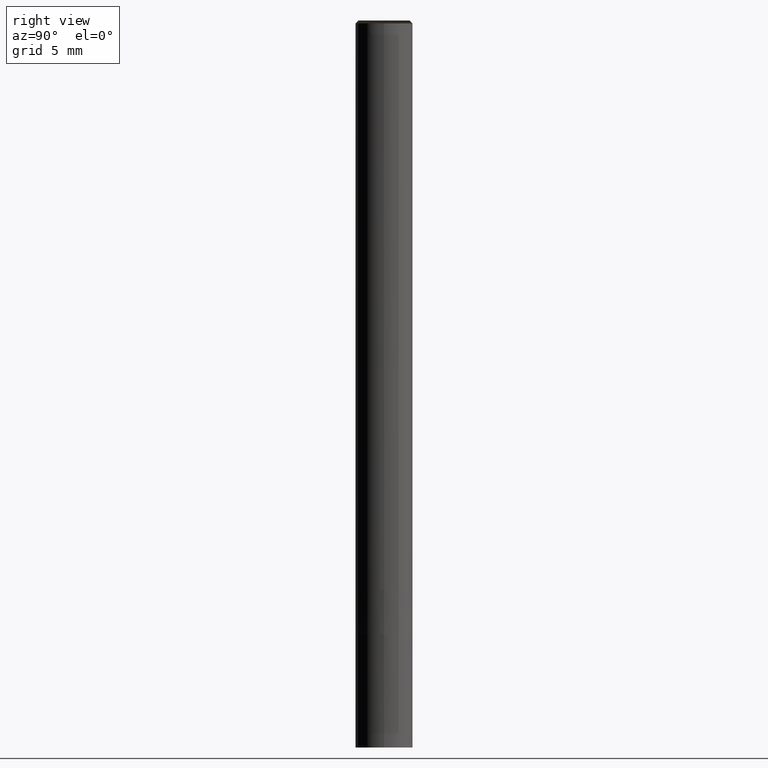
[diagram: clean part render]
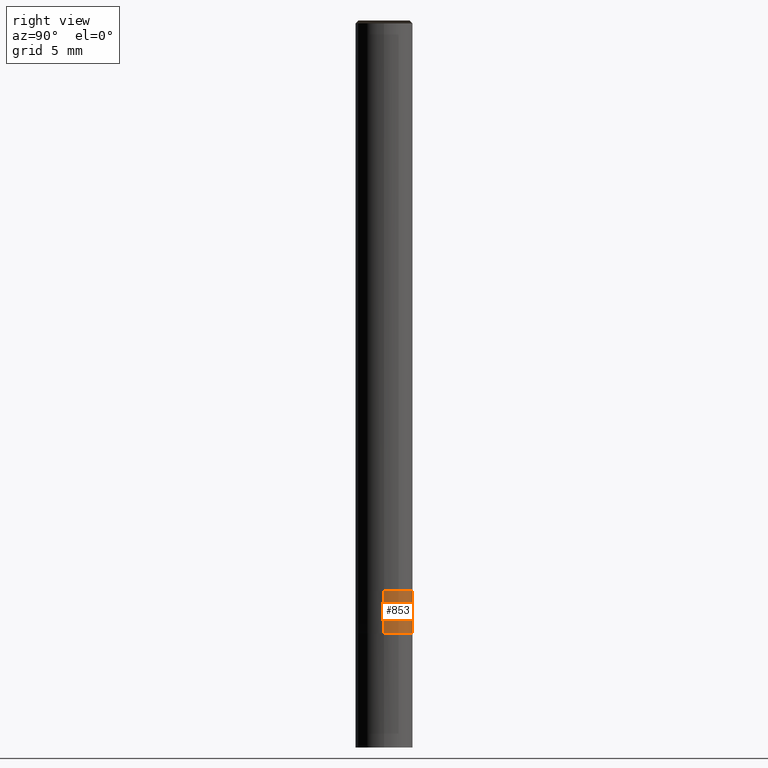
[diagram: same view with one face highlighted and labeled with its STEP entity id]
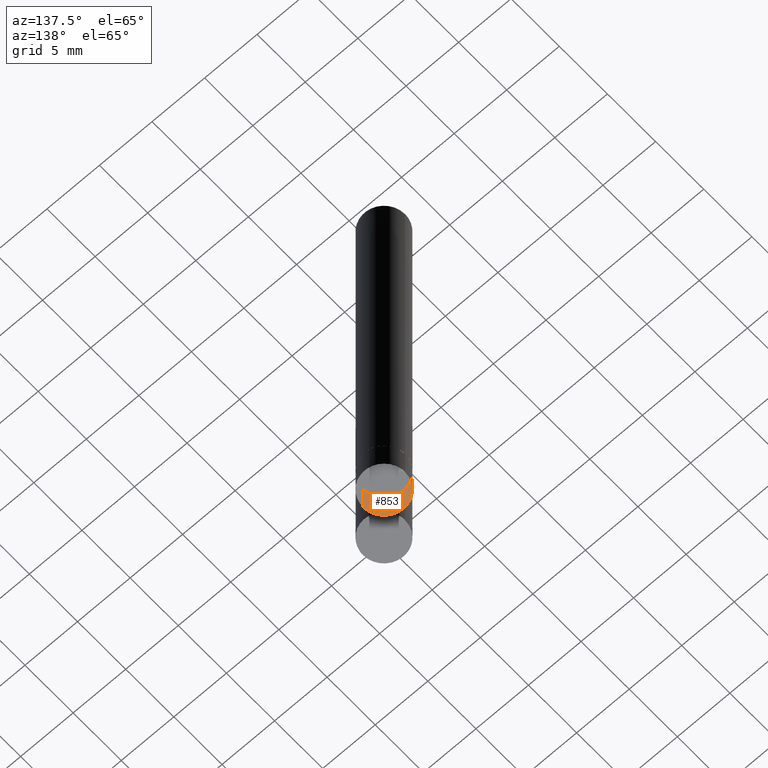
[diagram: same view with one face highlighted and labeled with its STEP entity id]
A machine part, right view. The second image highlights one B-rep face of the part: STEP entity #853.
A second angle (auxiliary view) of the same face is appended — the face is thin or edge-on in the first view.
In plain terms, the highlighted face is a freeform B-spline surface patch.
Its self-contained STEP definition (entity closure, byte-faithful):
#667=CARTESIAN_POINT('',(2.0,0.0,-3.0));
#668=CARTESIAN_POINT('',(2.0,2.0,-3.0));
#669=CARTESIAN_POINT('',(0.0,2.0,-3.0));
#670=CARTESIAN_POINT('',(-2.0,2.0,-3.0));
#671=CARTESIAN_POINT('',(-2.0,0.0,-3.0));
#678=CARTESIAN_POINT('',(2.0,0.0,0.0));
#679=CARTESIAN_POINT('',(2.0,2.0,0.0));
#680=CARTESIAN_POINT('',(0.0,2.0,0.0));
#681=CARTESIAN_POINT('',(-2.0,2.0,0.0));
#682=CARTESIAN_POINT('',(-2.0,0.0,0.0));
#834=(
BOUNDED_SURFACE()
B_SPLINE_SURFACE(1,2,(
(#667,#668,#669,#670,#671),
(#678,#679,#680,#681,#682)
), .UNSPECIFIED.,.F.,.F.,.F.)
B_SPLINE_SURFACE_WITH_KNOTS((2,2),(3,2,3),(
0.0,1.0),(
0.0,0.5,1.0), .UNSPECIFIED.)
GEOMETRIC_REPRESENTATION_ITEM()
RATIONAL_B_SPLINE_SURFACE(((1.0,0.707106781187,1.0,0.707106781187,1.0),
(1.0,0.707106781187,1.0,0.707106781187,1.0)
))
REPRESENTATION_ITEM('')
SURFACE()
);
#835=(
BOUNDED_CURVE()
B_SPLINE_CURVE(2,(#671,#670,#669,#668,#667),.UNSPECIFIED.,.F.,.F.)
B_SPLINE_CURVE_WITH_KNOTS((3,2,3),
(0.0,0.5,1.0),.UNSPECIFIED.)
CURVE()
GEOMETRIC_REPRESENTATION_ITEM()
RATIONAL_B_SPLINE_CURVE((1.0,0.707106781187,1.0,0.707106781187,1.0))
REPRESENTATION_ITEM('')
);
#836=(
BOUNDED_CURVE()
B_SPLINE_CURVE(1,(#667,#678),.UNSPECIFIED.,.F.,.F.)
B_SPLINE_CURVE_WITH_KNOTS((2,2),
(0.0,1.0),.UNSPECIFIED.)
CURVE()
GEOMETRIC_REPRESENTATION_ITEM()
RATIONAL_B_SPLINE_CURVE((1.0,1.0))
REPRESENTATION_ITEM('')
);
#837=(
BOUNDED_CURVE()
B_SPLINE_CURVE(2,(#678,#679,#680,#681,#682),.UNSPECIFIED.,.F.,.F.)
B_SPLINE_CURVE_WITH_KNOTS((3,2,3),
(0.0,0.5,1.0),.UNSPECIFIED.)
CURVE()
GEOMETRIC_REPRESENTATION_ITEM()
RATIONAL_B_SPLINE_CURVE((1.0,0.707106781187,1.0,0.707106781187,1.0))
REPRESENTATION_ITEM('')
);
#838=(
BOUNDED_CURVE()
B_SPLINE_CURVE(1,(#682,#671),.UNSPECIFIED.,.F.,.F.)
B_SPLINE_CURVE_WITH_KNOTS((2,2),
(0.0,1.0),.UNSPECIFIED.)
CURVE()
GEOMETRIC_REPRESENTATION_ITEM()
RATIONAL_B_SPLINE_CURVE((1.0,1.0))
REPRESENTATION_ITEM('')
);
#839=VERTEX_POINT('',#667);
#840=VERTEX_POINT('',#671);
#841=VERTEX_POINT('',#678);
#842=VERTEX_POINT('',#682);
#843=EDGE_CURVE('',#840,#839,#835,.T.);
#844=EDGE_CURVE('',#839,#841,#836,.T.);
#845=EDGE_CURVE('',#841,#842,#837,.T.);
#846=EDGE_CURVE('',#842,#840,#838,.T.);
#847=ORIENTED_EDGE('',*,*,#843,.T.);
#848=ORIENTED_EDGE('',*,*,#844,.T.);
#849=ORIENTED_EDGE('',*,*,#845,.T.);
#850=ORIENTED_EDGE('',*,*,#846,.T.);
#851=EDGE_LOOP('',(#847,#848,#849,#850));
#852=FACE_OUTER_BOUND('',#851,.T.);
#853=ADVANCED_FACE('',(#852),#834,.T.);